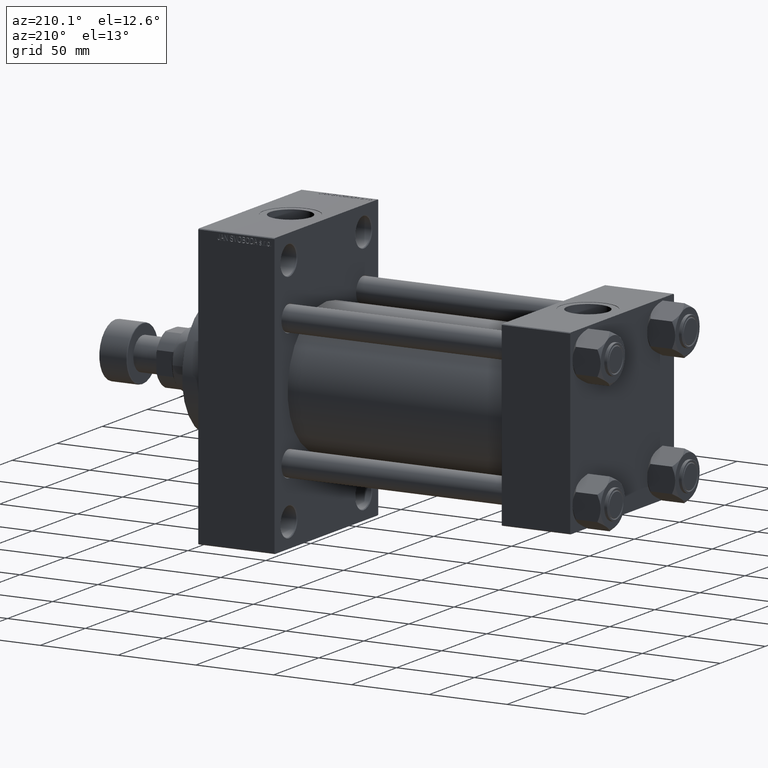
[diagram: clean part render]
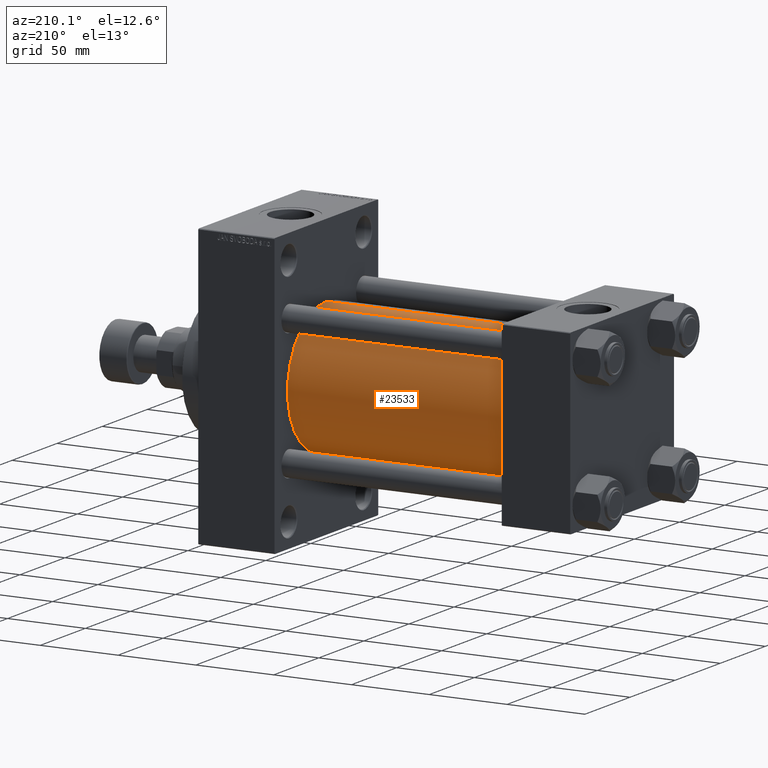
[diagram: same view with one face highlighted and labeled with its STEP entity id]
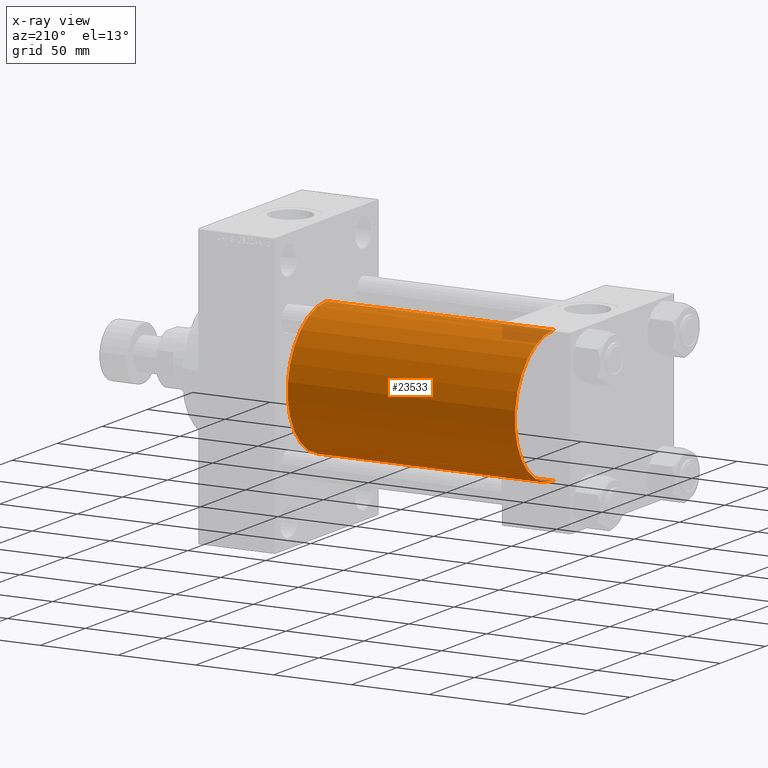
[diagram: x-ray of the same camera — body ghosted, the highlighted face saturated]
A machine part, auxiliary view. The second image highlights one B-rep face of the part: STEP entity #23533.
The next image is the same camera in x-ray: the body ghosted, the highlighted face saturated — about 2% of this face is hidden behind the body in this view.
In plain terms, the highlighted cylindrical surface (partial cylindrical patch) has radius 43 mm, axis along (-1, -0, -0).
Its self-contained STEP definition (entity closure, byte-faithful):
#1924 = DIRECTION ( 'NONE',  ( 1.000000000000000000, -0.000000000000000000, 0.000000000000000000 ) ) ;
#2990 = CARTESIAN_POINT ( 'NONE',  ( 43.99999999999998579, 2.663896022368408223E-15, -43.00000000000000000 ) ) ;
#8707 = CARTESIAN_POINT ( 'NONE',  ( 190.0000000000000000, -2.602085213965210642E-15, 43.00000000000000000 ) ) ;
#9866 = CARTESIAN_POINT ( 'NONE',  ( 190.0000000000000000, -2.602085213965210642E-15, 0.000000000000000000 ) ) ;
#12107 = DIRECTION ( 'NONE',  ( -1.000000000000000000, -0.000000000000000000, -0.000000000000000000 ) ) ;
#12768 = VERTEX_POINT ( 'NONE', #35192 ) ;
#15024 = CARTESIAN_POINT ( 'NONE',  ( 190.0000000000000000, -2.602085213965210642E-15, 43.00000000000000000 ) ) ;
#15363 = VECTOR ( 'NONE', #24005, 1000.000000000000000 ) ;
#15423 = FACE_OUTER_BOUND ( 'NONE', #23619, .T. ) ;
#17174 = DIRECTION ( 'NONE',  ( 1.000000000000000000, 0.000000000000000000, 0.000000000000000000 ) ) ;
#17188 = ORIENTED_EDGE ( 'NONE', *, *, #21824, .F. ) ;
#17251 = DIRECTION ( 'NONE',  ( 0.000000000000000000, 0.000000000000000000, 1.000000000000000000 ) ) ;
#17637 = EDGE_CURVE ( 'NONE', #42552, #12768, #20124, .T. ) ;
#20124 = LINE ( 'NONE', #8707, #34421 ) ;
#20423 = CARTESIAN_POINT ( 'NONE',  ( 43.99999999999998579, -2.602085213965210642E-15, 0.000000000000000000 ) ) ;
#20448 = CARTESIAN_POINT ( 'NONE',  ( 190.0000000000000000, 2.663896022368408223E-15, -43.00000000000000000 ) ) ;
#20493 = ORIENTED_EDGE ( 'NONE', *, *, #39733, .T. ) ;
#20594 = CARTESIAN_POINT ( 'NONE',  ( 190.0000000000000000, 2.663896022368408223E-15, -43.00000000000000000 ) ) ;
#21424 = VERTEX_POINT ( 'NONE', #2990 ) ;
#21824 = EDGE_CURVE ( 'NONE', #46295, #42552, #47772, .T. ) ;
#23533 = ADVANCED_FACE ( 'NONE', ( #15423 ), #33704, .T. ) ;
#23619 = EDGE_LOOP ( 'NONE', ( #17188, #46815, #20493, #28943 ) ) ;
#23694 = CARTESIAN_POINT ( 'NONE',  ( 190.0000000000000000, -2.602085213965210642E-15, 0.000000000000000000 ) ) ;
#24005 = DIRECTION ( 'NONE',  ( -1.000000000000000000, -0.000000000000000000, -0.000000000000000000 ) ) ;
#26405 = DIRECTION ( 'NONE',  ( -1.000000000000000000, -0.000000000000000000, -0.000000000000000000 ) ) ;
#27668 = LINE ( 'NONE', #20594, #15363 ) ;
#28943 = ORIENTED_EDGE ( 'NONE', *, *, #17637, .F. ) ;
#29853 = AXIS2_PLACEMENT_3D ( 'NONE', #23694, #26405, #30999 ) ;
#30999 = DIRECTION ( 'NONE',  ( 0.000000000000000000, 0.000000000000000000, 1.000000000000000000 ) ) ;
#32030 = DIRECTION ( 'NONE',  ( 0.000000000000000000, 0.000000000000000000, -1.000000000000000000 ) ) ;
#33004 = AXIS2_PLACEMENT_3D ( 'NONE', #9866, #17174, #32030 ) ;
#33473 = EDGE_CURVE ( 'NONE', #46295, #21424, #27668, .T. ) ;
#33704 = CYLINDRICAL_SURFACE ( 'NONE', #29853, 43.00000000000000000 ) ;
#34421 = VECTOR ( 'NONE', #12107, 1000.000000000000000 ) ;
#35192 = CARTESIAN_POINT ( 'NONE',  ( 43.99999999999998579, -2.602085213965210642E-15, 43.00000000000000000 ) ) ;
#36413 = CIRCLE ( 'NONE', #46512, 43.00000000000000000 ) ;
#39733 = EDGE_CURVE ( 'NONE', #21424, #12768, #36413, .T. ) ;
#42552 = VERTEX_POINT ( 'NONE', #15024 ) ;
#46295 = VERTEX_POINT ( 'NONE', #20448 ) ;
#46512 = AXIS2_PLACEMENT_3D ( 'NONE', #20423, #1924, #17251 ) ;
#46815 = ORIENTED_EDGE ( 'NONE', *, *, #33473, .T. ) ;
#47772 = CIRCLE ( 'NONE', #33004, 43.00000000000000000 ) ;